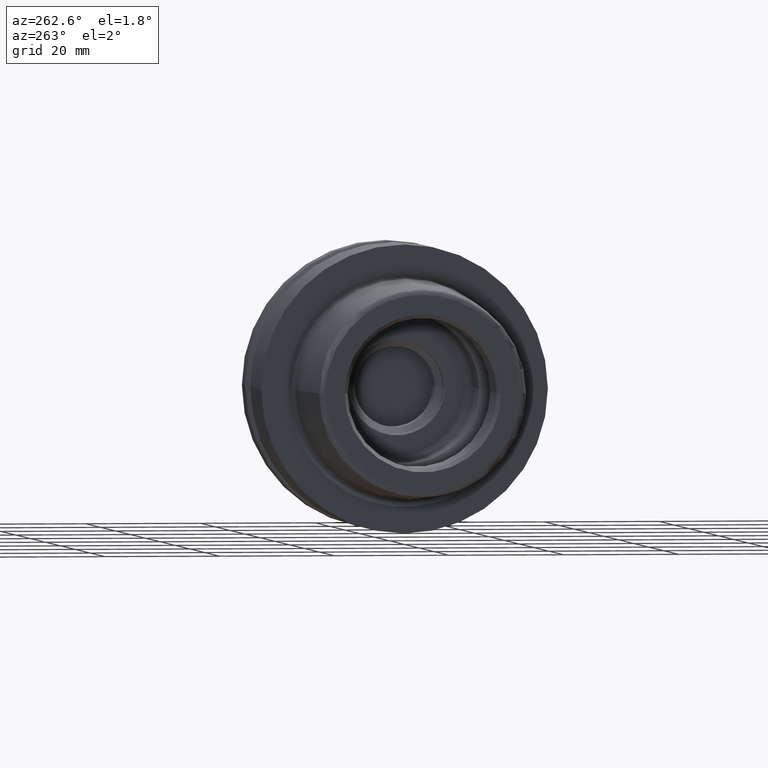
[diagram: clean part render]
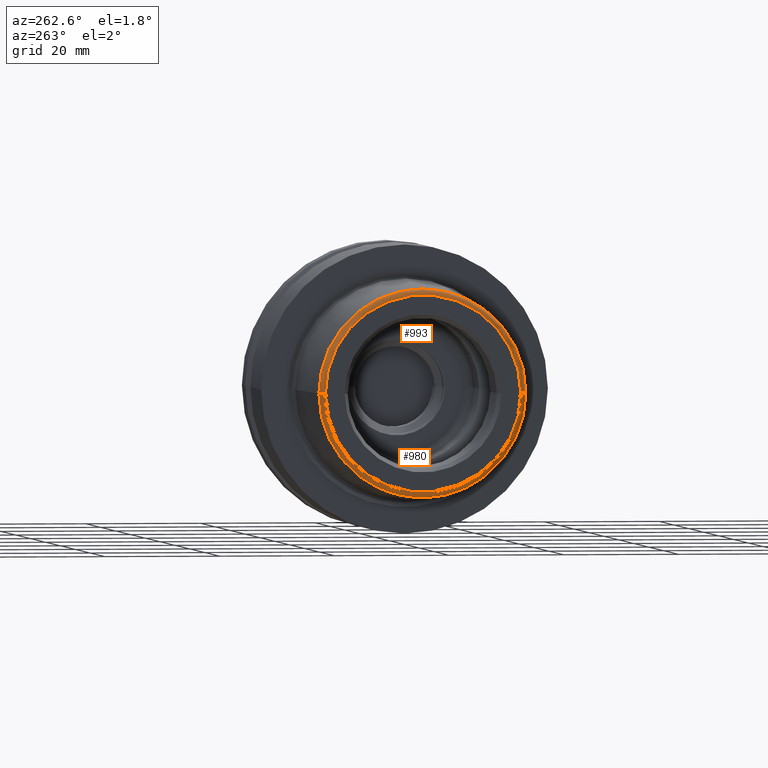
[diagram: same view with one multi-face feature highlighted, each face labeled with its STEP entity id]
A machine part, auxiliary view. The highlighted faces form ONE feature: a constant-radius fillet chain: 2 tangent blend faces with common blend radius 1 mm. The faces share edges in the B-rep.
Their STEP definitions:
[1] entity #980 (Torus):
#38=CARTESIAN_POINT('',(-2.39E1,1.705635578153E1,0.E0));
#39=DIRECTION('',(0.E0,0.E0,1.E0));
#40=DIRECTION('',(-5.003724236654E-2,9.987473526255E-1,0.E0));
#41=AXIS2_PLACEMENT_3D('',#38,#39,#40);
#43=CARTESIAN_POINT('',(-2.39E1,-1.705635578153E1,0.E0));
#44=DIRECTION('',(0.E0,0.E0,-1.E0));
#45=DIRECTION('',(-5.003724236654E-2,-9.987473526255E-1,0.E0));
#46=AXIS2_PLACEMENT_3D('',#43,#44,#45);
#48=CARTESIAN_POINT('',(-2.395003724237E1,0.E0,0.E0));
#49=DIRECTION('',(-1.E0,0.E0,0.E0));
#50=DIRECTION('',(0.E0,1.E0,0.E0));
#51=AXIS2_PLACEMENT_3D('',#48,#49,#50);
#58=CARTESIAN_POINT('',(-2.49E1,0.E0,0.E0));
#59=DIRECTION('',(-1.E0,0.E0,0.E0));
#60=DIRECTION('',(0.E0,1.E0,0.E0));
#61=AXIS2_PLACEMENT_3D('',#58,#59,#60);
#756=CARTESIAN_POINT('',(-2.395003724237E1,1.805510313416E1,0.E0));
#757=VERTEX_POINT('',#756);
#758=CARTESIAN_POINT('',(-2.395003724237E1,-1.805510313416E1,0.E0));
#759=VERTEX_POINT('',#758);
#764=CARTESIAN_POINT('',(-2.49E1,1.705635578153E1,0.E0));
#765=VERTEX_POINT('',#764);
#766=CARTESIAN_POINT('',(-2.49E1,-1.705635578153E1,0.E0));
#767=VERTEX_POINT('',#766);
#966=CARTESIAN_POINT('',(-2.39E1,0.E0,0.E0));
#967=DIRECTION('',(1.E0,0.E0,0.E0));
#968=DIRECTION('',(0.E0,-1.E0,0.E0));
#969=AXIS2_PLACEMENT_3D('',#966,#967,#968);
#970=TOROIDAL_SURFACE('',#969,1.705635578153E1,1.E0);
#972=ORIENTED_EDGE('',*,*,#971,.T.);
#974=ORIENTED_EDGE('',*,*,#973,.T.);
#976=ORIENTED_EDGE('',*,*,#975,.F.);
#977=ORIENTED_EDGE('',*,*,#960,.F.);
#978=EDGE_LOOP('',(#972,#974,#976,#977));
#979=FACE_OUTER_BOUND('',#978,.F.);
#980=ADVANCED_FACE('',(#979),#970,.T.);
#42=CIRCLE('',#41,1.E0);
#47=CIRCLE('',#46,1.E0);
#52=CIRCLE('',#51,1.805510313416E1);
#62=CIRCLE('',#61,1.705635578153E1);
#960=EDGE_CURVE('',#757,#759,#52,.T.);
#971=EDGE_CURVE('',#757,#765,#42,.T.);
#973=EDGE_CURVE('',#765,#767,#62,.T.);
#975=EDGE_CURVE('',#759,#767,#47,.T.);
[2] entity #993 (Torus):
#38=CARTESIAN_POINT('',(-2.39E1,1.705635578153E1,0.E0));
#39=DIRECTION('',(0.E0,0.E0,1.E0));
#40=DIRECTION('',(-5.003724236654E-2,9.987473526255E-1,0.E0));
#41=AXIS2_PLACEMENT_3D('',#38,#39,#40);
#43=CARTESIAN_POINT('',(-2.39E1,-1.705635578153E1,0.E0));
#44=DIRECTION('',(0.E0,0.E0,-1.E0));
#45=DIRECTION('',(-5.003724236654E-2,-9.987473526255E-1,0.E0));
#46=AXIS2_PLACEMENT_3D('',#43,#44,#45);
#53=CARTESIAN_POINT('',(-2.395003724237E1,0.E0,0.E0));
#54=DIRECTION('',(1.E0,0.E0,0.E0));
#55=DIRECTION('',(0.E0,1.E0,0.E0));
#56=AXIS2_PLACEMENT_3D('',#53,#54,#55);
#63=CARTESIAN_POINT('',(-2.49E1,0.E0,0.E0));
#64=DIRECTION('',(1.E0,0.E0,0.E0));
#65=DIRECTION('',(0.E0,1.E0,0.E0));
#66=AXIS2_PLACEMENT_3D('',#63,#64,#65);
#756=CARTESIAN_POINT('',(-2.395003724237E1,1.805510313416E1,0.E0));
#757=VERTEX_POINT('',#756);
#758=CARTESIAN_POINT('',(-2.395003724237E1,-1.805510313416E1,0.E0));
#759=VERTEX_POINT('',#758);
#764=CARTESIAN_POINT('',(-2.49E1,1.705635578153E1,0.E0));
#765=VERTEX_POINT('',#764);
#766=CARTESIAN_POINT('',(-2.49E1,-1.705635578153E1,0.E0));
#767=VERTEX_POINT('',#766);
#981=CARTESIAN_POINT('',(-2.39E1,0.E0,0.E0));
#982=DIRECTION('',(1.E0,0.E0,0.E0));
#983=DIRECTION('',(0.E0,-1.E0,0.E0));
#984=AXIS2_PLACEMENT_3D('',#981,#982,#983);
#985=TOROIDAL_SURFACE('',#984,1.705635578153E1,1.E0);
#986=ORIENTED_EDGE('',*,*,#971,.F.);
#987=ORIENTED_EDGE('',*,*,#917,.T.);
#988=ORIENTED_EDGE('',*,*,#975,.T.);
#990=ORIENTED_EDGE('',*,*,#989,.F.);
#991=EDGE_LOOP('',(#986,#987,#988,#990));
#992=FACE_OUTER_BOUND('',#991,.F.);
#993=ADVANCED_FACE('',(#992),#985,.T.);
#42=CIRCLE('',#41,1.E0);
#47=CIRCLE('',#46,1.E0);
#57=CIRCLE('',#56,1.805510313416E1);
#67=CIRCLE('',#66,1.705635578153E1);
#917=EDGE_CURVE('',#757,#759,#57,.T.);
#971=EDGE_CURVE('',#757,#765,#42,.T.);
#975=EDGE_CURVE('',#759,#767,#47,.T.);
#989=EDGE_CURVE('',#765,#767,#67,.T.);